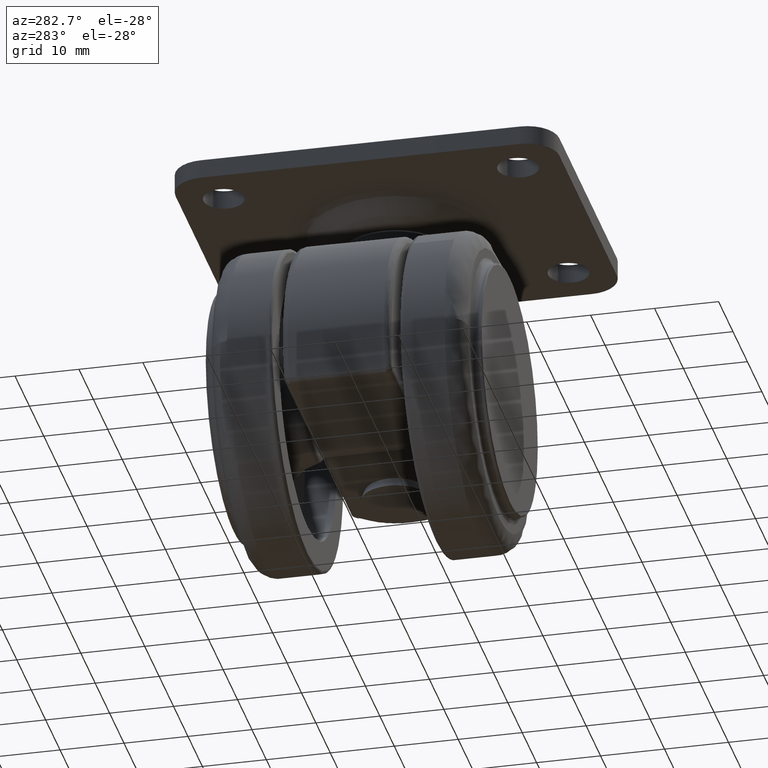
[diagram: clean part render]
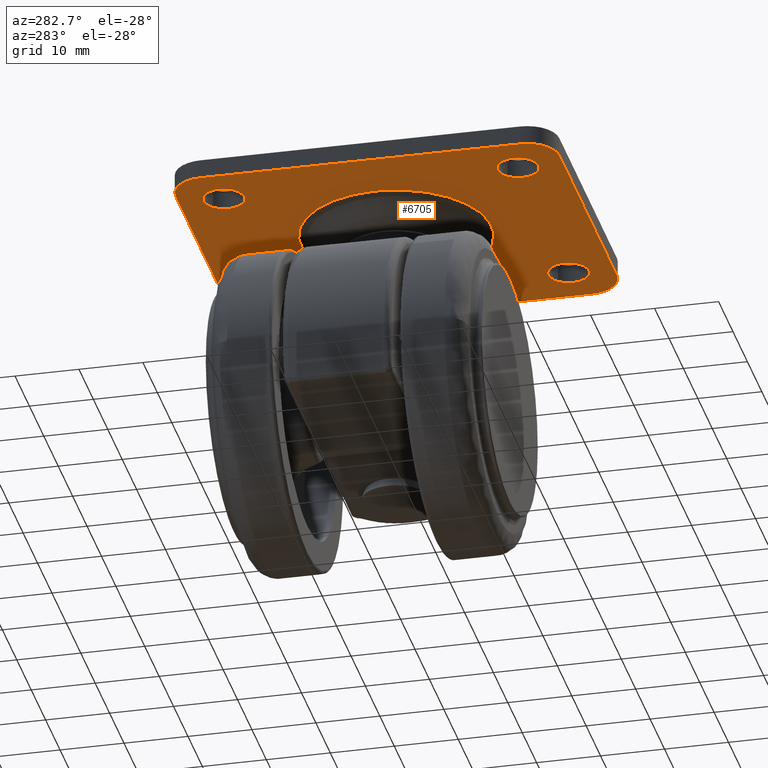
[diagram: same view with one face highlighted and labeled with its STEP entity id]
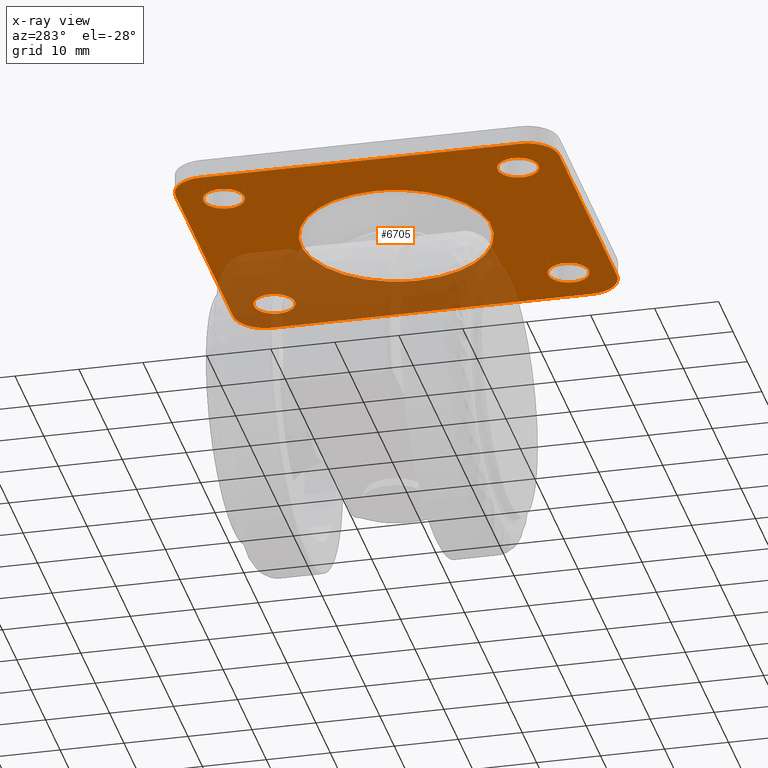
[diagram: x-ray of the same camera — body ghosted, the highlighted face saturated]
A machine part, auxiliary view. The second image highlights one B-rep face of the part: STEP entity #6705.
The next image is the same camera in x-ray: the body ghosted, the highlighted face saturated — about 32% of this face is hidden behind the body in this view.
In plain terms, the highlighted face is a freeform B-spline surface patch.
Its self-contained STEP definition (entity closure, byte-faithful):
#5645=CARTESIAN_POINT('',(1.821197815089798,25.202734401939399,38.0));
#5646=VERTEX_POINT('',#5645);
#5652=CARTESIAN_POINT('',(2.700000000000000,23.0,38.0));
#5653=VERTEX_POINT('',#5652);
#5654=CARTESIAN_POINT('',(2.700000000000000,23.0,38.0));
#5655=CARTESIAN_POINT('',(2.700327592342480,23.379663535215339,38.000000000000099));
#5656=CARTESIAN_POINT('',(2.590575398098085,23.986801447734120,38.000000000000071));
#5657=CARTESIAN_POINT('',(2.226995133786807,24.715620211499498,37.999999999999822));
#5658=CARTESIAN_POINT('',(1.960575628047443,25.055889256916519,38.000000000000149));
#5659=CARTESIAN_POINT('',(1.821197815089798,25.202734401939399,38.0));
#5660=B_SPLINE_CURVE_WITH_KNOTS('',3,(#5654,#5655,#5656,#5657,#5658,#5659),.UNSPECIFIED.,.F.,.U.,(4,1,1,4),(0.000000024276487,1.138840426402756,1.822134304243089,2.429512397566157),.UNSPECIFIED.);
#5661=EDGE_CURVE('',#5653,#5646,#5660,.T.);
#5663=CARTESIAN_POINT('',(-0.499998837322204,19.800000000000210,38.0));
#5664=VERTEX_POINT('',#5663);
#5665=CARTESIAN_POINT('',(-0.499998837322204,19.800000000000210,38.0));
#5666=CARTESIAN_POINT('',(-0.277468993926836,19.799973766591901,38.000000000000043));
#5667=CARTESIAN_POINT('',(0.167578739404953,19.846602796689162,38.000000000000028));
#5668=CARTESIAN_POINT('',(0.843799909476237,20.065353587800949,37.999999999999922));
#5669=CARTESIAN_POINT('',(1.398085055593777,20.397598040863649,38.000000000000078));
#5670=CARTESIAN_POINT('',(1.923289844793699,20.873586162689339,37.999999999999531));
#5671=CARTESIAN_POINT('',(2.310180261691126,21.408847019132669,38.000000000000263));
#5672=CARTESIAN_POINT('',(2.622248205985708,22.162314851148590,37.999999999999901));
#5673=CARTESIAN_POINT('',(2.700129237018877,22.685828479393589,38.000000000000043));
#5674=CARTESIAN_POINT('',(2.700000000000000,23.0,38.0));
#5675=B_SPLINE_CURVE_WITH_KNOTS('',3,(#5665,#5666,#5667,#5668,#5669,#5670,#5671,#5672,#5673,#5674),.UNSPECIFIED.,.F.,.U.,(4,1,1,1,1,1,1,4),(0.000000099089100,0.667590304751695,1.335186188772838,2.120593227736319,2.591809422980791,3.455765944233296,4.084102798533280,5.026579129899637),.UNSPECIFIED.);
#5676=EDGE_CURVE('',#5664,#5653,#5675,.T.);
#5678=CARTESIAN_POINT('',(-2.821197815089791,20.797265598060608,38.0));
#5679=VERTEX_POINT('',#5678);
#5680=CARTESIAN_POINT('',(-2.821197815089791,20.797265598060608,38.0));
#5681=CARTESIAN_POINT('',(-2.588550152113383,20.551815194952400,38.000000000000078));
#5682=CARTESIAN_POINT('',(-2.131469269058897,20.202566739679629,37.999999999999872));
#5683=CARTESIAN_POINT('',(-1.325053856213758,19.874126692175619,38.000000000000178));
#5684=CARTESIAN_POINT('',(-0.797587973652841,19.799897435573541,37.999999999999979));
#5685=CARTESIAN_POINT('',(-0.499998837322204,19.800000000000210,38.0));
#5686=B_SPLINE_CURVE_WITH_KNOTS('',3,(#5680,#5681,#5682,#5683,#5684,#5685),.UNSPECIFIED.,.F.,.U.,(4,1,1,4),(0.000000026464742,1.014488720852518,1.704321491316364,2.597068427438120),.UNSPECIFIED.);
#5687=EDGE_CURVE('',#5679,#5664,#5686,.T.);
#5727=CARTESIAN_POINT('',(-3.700000000000000,23.0,38.0));
#5728=VERTEX_POINT('',#5727);
#5729=CARTESIAN_POINT('',(-3.700000000000000,23.0,38.0));
#5730=CARTESIAN_POINT('',(-3.700014275915879,22.797542957936109,38.000000000000050));
#5731=CARTESIAN_POINT('',(-3.656657786487206,22.342012373279360,37.999999999999993));
#5732=CARTESIAN_POINT('',(-3.409144904511557,21.564933455713518,38.000000000000043));
#5733=CARTESIAN_POINT('',(-3.065270240035319,21.054130898848939,37.999999999999993));
#5734=CARTESIAN_POINT('',(-2.821197815089791,20.797265598060608,38.0));
#5735=B_SPLINE_CURVE_WITH_KNOTS('',3,(#5729,#5730,#5731,#5732,#5733,#5734),.UNSPECIFIED.,.F.,.U.,(4,1,1,4),(0.000000024275514,0.607378117597622,1.366591248218164,2.429512397566153),.UNSPECIFIED.);
#5736=EDGE_CURVE('',#5728,#5679,#5735,.T.);
#5738=CARTESIAN_POINT('',(-0.500001162677764,26.199999999999790,38.0));
#5739=VERTEX_POINT('',#5738);
#5740=CARTESIAN_POINT('',(-0.500001162677764,26.199999999999790,38.0));
#5741=CARTESIAN_POINT('',(-0.774892467162005,26.200077353486780,38.000000000000007));
#5742=CARTESIAN_POINT('',(-1.259186288259239,26.137201710227028,37.999999999999922));
#5743=CARTESIAN_POINT('',(-1.875630516762560,25.908032999128569,38.000000000000142));
#5744=CARTESIAN_POINT('',(-2.418269991173651,25.587322406203100,38.0));
#5745=CARTESIAN_POINT('',(-2.919077129752634,25.139039175232298,37.999999999999957));
#5746=CARTESIAN_POINT('',(-3.325258202476805,24.554662160171599,38.000000000000057));
#5747=CARTESIAN_POINT('',(-3.622239114397012,23.837682757170811,38.000000000000021));
#5748=CARTESIAN_POINT('',(-3.700134776717856,23.314174355377130,37.999999999999972));
#5749=CARTESIAN_POINT('',(-3.700000000000000,23.0,38.0));
#5750=B_SPLINE_CURVE_WITH_KNOTS('',3,(#5740,#5741,#5742,#5743,#5744,#5745,#5746,#5747,#5748,#5749),.UNSPECIFIED.,.F.,.U.,(4,1,1,1,1,1,1,4),(0.000000099076751,0.824662171667979,1.452998380015252,1.963526388306617,2.709637160765788,3.455765944231594,4.084102798532874,5.026579129899658),.UNSPECIFIED.);
#5751=EDGE_CURVE('',#5739,#5728,#5750,.T.);
#5753=CARTESIAN_POINT('',(1.821197815089798,25.202734401939399,38.0));
#5754=CARTESIAN_POINT('',(1.662935449219573,25.369557434904301,37.999999999999993));
#5755=CARTESIAN_POINT('',(1.320619788097408,25.660049711714439,38.000000000000092));
#5756=CARTESIAN_POINT('',(0.794074253250719,25.943985672185040,37.999999999999787));
#5757=CARTESIAN_POINT('',(0.189809757713054,26.146489722412461,38.000000000000220));
#5758=CARTESIAN_POINT('',(-0.229463880520607,26.200074394499840,37.999999999999993));
#5759=CARTESIAN_POINT('',(-0.500001162677764,26.199999999999790,38.0));
#5760=B_SPLINE_CURVE_WITH_KNOTS('',3,(#5753,#5754,#5755,#5756,#5757,#5758,#5759),.UNSPECIFIED.,.F.,.U.,(4,1,1,1,4),(0.000000026465615,0.689847183008232,1.339098781058016,1.785480325967836,2.597068427438073),.UNSPECIFIED.);
#5761=EDGE_CURVE('',#5646,#5739,#5760,.T.);
#5850=CARTESIAN_POINT('',(36.821197815089803,25.202734401939399,38.0));
#5851=VERTEX_POINT('',#5850);
#5857=CARTESIAN_POINT('',(37.700000000000003,23.0,38.0));
#5858=VERTEX_POINT('',#5857);
#5859=CARTESIAN_POINT('',(37.700000000000003,23.0,38.0));
#5860=CARTESIAN_POINT('',(37.700229638636841,23.354331029951339,38.000000000000121));
#5861=CARTESIAN_POINT('',(37.598060277213300,23.961566109942972,37.999999999999730));
#5862=CARTESIAN_POINT('',(37.242679615435840,24.695608208203218,38.000000000000362));
#5863=CARTESIAN_POINT('',(36.960574328315992,25.055889123600419,37.999999999999687));
#5864=CARTESIAN_POINT('',(36.821197815089803,25.202734401939399,38.0));
#5865=B_SPLINE_CURVE_WITH_KNOTS('',3,(#5859,#5860,#5861,#5862,#5863,#5864),.UNSPECIFIED.,.F.,.U.,(4,1,1,4),(0.000000024275492,1.062921173658126,1.822134304243355,2.429512397566155),.UNSPECIFIED.);
#5866=EDGE_CURVE('',#5858,#5851,#5865,.T.);
#5868=CARTESIAN_POINT('',(34.500001162677812,19.800000000000210,38.0));
#5869=VERTEX_POINT('',#5868);
#5870=CARTESIAN_POINT('',(34.500001162677812,19.800000000000210,38.0));
#5871=CARTESIAN_POINT('',(34.853459199517992,19.799792204218850,38.000000000000099));
#5872=CARTESIAN_POINT('',(35.429266176297347,19.896416708330829,37.999999999999702));
#5873=CARTESIAN_POINT('',(36.133238482314731,20.224193720887691,38.000000000000398));
#5874=CARTESIAN_POINT('',(36.674181364178189,20.620232197040909,37.999999999999602));
#5875=CARTESIAN_POINT('',(37.060954134825721,21.052261407970349,38.000000000000121));
#5876=CARTESIAN_POINT('',(37.370524754867397,21.554721985276469,38.000000000000107));
#5877=CARTESIAN_POINT('',(37.622258891431073,22.162305959944948,37.999999999999851));
#5878=CARTESIAN_POINT('',(37.700129097529171,22.685828959659961,37.999999999999950));
#5879=CARTESIAN_POINT('',(37.700000000000003,23.0,38.0));
#5880=B_SPLINE_CURVE_WITH_KNOTS('',3,(#5870,#5871,#5872,#5873,#5874,#5875,#5876,#5877,#5878,#5879),.UNSPECIFIED.,.F.,.U.,(4,1,1,1,1,1,1,4),(0.000000099086728,1.060293317972911,1.727887676833240,2.316943611558083,3.063053258171928,3.455765944232729,4.084102798533112,5.026579129899635),.UNSPECIFIED.);
#5881=EDGE_CURVE('',#5869,#5858,#5880,.T.);
#5883=CARTESIAN_POINT('',(32.178802184910211,20.797265598060608,38.0));
#5884=VERTEX_POINT('',#5883);
#5885=CARTESIAN_POINT('',(32.178802184910211,20.797265598060608,38.0));
#5886=CARTESIAN_POINT('',(32.439308762614701,20.522259326657959,37.999999999999893));
#5887=CARTESIAN_POINT('',(32.871277487502930,20.205275982379320,38.000000000000171));
#5888=CARTESIAN_POINT('',(33.675002963864813,19.877941538905780,37.999999999999872));
#5889=CARTESIAN_POINT('',(34.161808757729553,19.799801452755499,38.000000000000149));
#5890=CARTESIAN_POINT('',(34.500001162677812,19.800000000000210,38.0));
#5891=B_SPLINE_CURVE_WITH_KNOTS('',3,(#5885,#5886,#5887,#5888,#5889,#5890),.UNSPECIFIED.,.F.,.U.,(4,1,1,4),(0.000000026468123,1.136229976142350,1.582579733022815,2.597068427438110),.UNSPECIFIED.);
#5892=EDGE_CURVE('',#5884,#5869,#5891,.T.);
#5932=CARTESIAN_POINT('',(31.300000000000001,23.0,38.0));
#5933=VERTEX_POINT('',#5932);
#5934=CARTESIAN_POINT('',(31.300000000000001,23.0,38.0));
#5935=CARTESIAN_POINT('',(31.299693927782808,22.620338280500128,38.000000000000121));
#5936=CARTESIAN_POINT('',(31.402558691645780,22.051152207234569,37.999999999999737));
#5937=CARTESIAN_POINT('',(31.752531571894991,21.317260848178790,38.000000000000263));
#5938=CARTESIAN_POINT('',(32.013270007823913,20.971629097371700,37.999999999999808));
#5939=CARTESIAN_POINT('',(32.178802184910211,20.797265598060608,38.0));
#5940=B_SPLINE_CURVE_WITH_KNOTS('',3,(#5934,#5935,#5936,#5937,#5938,#5939),.UNSPECIFIED.,.F.,.U.,(4,1,1,4),(0.000000024276201,1.138840426402362,1.708248340673662,2.429512397566155),.UNSPECIFIED.);
#5941=EDGE_CURVE('',#5933,#5884,#5940,.T.);
#5943=CARTESIAN_POINT('',(34.499998837322252,26.199999999999790,38.0));
#5944=VERTEX_POINT('',#5943);
#5945=CARTESIAN_POINT('',(34.499998837322252,26.199999999999790,38.0));
#5946=CARTESIAN_POINT('',(34.146535589931851,26.200215840392271,38.000000000000043));
#5947=CARTESIAN_POINT('',(33.570751539238152,26.103556794413901,37.999999999999943));
#5948=CARTESIAN_POINT('',(32.783206229620383,25.736979433693129,38.000000000000092));
#5949=CARTESIAN_POINT('',(32.246920659037023,25.307797080145811,38.000000000000021));
#5950=CARTESIAN_POINT('',(31.825291249311292,24.787435374951752,38.000000000000092));
#5951=CARTESIAN_POINT('',(31.552562238357918,24.291943809345440,37.999999999999297));
#5952=CARTESIAN_POINT('',(31.350621868399330,23.680654546084838,38.000000000000732));
#5953=CARTESIAN_POINT('',(31.299947240345990,23.248708936318629,37.999999999999709));
#5954=CARTESIAN_POINT('',(31.300000000000001,23.0,38.0));
#5955=B_SPLINE_CURVE_WITH_KNOTS('',3,(#5945,#5946,#5947,#5948,#5949,#5950,#5951,#5952,#5953,#5954),.UNSPECIFIED.,.F.,.U.,(4,1,1,1,1,1,1,4),(0.000000099081436,1.060293317966420,1.727887676827639,2.591809422976955,3.102341623610741,3.730663262967035,4.280459172530868,5.026579129899662),.UNSPECIFIED.);
#5956=EDGE_CURVE('',#5944,#5933,#5955,.T.);
#5958=CARTESIAN_POINT('',(36.821197815089803,25.202734401939399,38.0));
#5959=CARTESIAN_POINT('',(36.644324401361629,25.389193877535689,37.999999999999993));
#5960=CARTESIAN_POINT('',(36.255841315727373,25.710445242192261,38.000000000000043));
#5961=CARTESIAN_POINT('',(35.473746149545498,26.094616930414631,37.999999999999957));
#5962=CARTESIAN_POINT('',(34.865247617722360,26.200255314535500,38.000000000000007));
#5963=CARTESIAN_POINT('',(34.499998837322252,26.199999999999790,38.0));
#5964=B_SPLINE_CURVE_WITH_KNOTS('',3,(#5958,#5959,#5960,#5961,#5962,#5963),.UNSPECIFIED.,.F.,.U.,(4,1,1,4),(0.000000026471420,0.771005969935823,1.501424918848094,2.597068427438095),.UNSPECIFIED.);
#5965=EDGE_CURVE('',#5851,#5944,#5964,.T.);
#6052=CARTESIAN_POINT('',(36.821197815089803,-20.797265598060601,38.000000000000007));
#6053=VERTEX_POINT('',#6052);
#6059=CARTESIAN_POINT('',(37.700000000000003,-23.0,38.0));
#6060=VERTEX_POINT('',#6059);
#6061=CARTESIAN_POINT('',(37.700000000000003,-23.0,38.0));
#6062=CARTESIAN_POINT('',(37.700045850380427,-22.759576448850680,38.000000000000043));
#6063=CARTESIAN_POINT('',(37.648418020908942,-22.304071615209860,37.999999999999922));
#6064=CARTESIAN_POINT('',(37.387611375244198,-21.533013539411339,38.000000000000078));
#6065=CARTESIAN_POINT('',(37.065285018785161,-21.054129359451220,37.999999999999957));
#6066=CARTESIAN_POINT('',(36.821197815089803,-20.797265598060601,38.000000000000007));
#6067=B_SPLINE_CURVE_WITH_KNOTS('',3,(#6061,#6062,#6063,#6064,#6065,#6066),.UNSPECIFIED.,.F.,.U.,(4,1,1,4),(0.000000024277275,0.721264081195667,1.366591248218386,2.429512397566152),.UNSPECIFIED.);
#6068=EDGE_CURVE('',#6060,#6053,#6067,.T.);
#6070=CARTESIAN_POINT('',(34.500001162677812,-26.199999999999790,38.0));
#6071=VERTEX_POINT('',#6070);
#6072=CARTESIAN_POINT('',(34.500001162677812,-26.199999999999790,38.0));
#6073=CARTESIAN_POINT('',(34.748709810699012,-26.200048696271960,38.000000000000007));
#6074=CARTESIAN_POINT('',(35.193745664064132,-26.147844725498899,38.000000000000050));
#6075=CARTESIAN_POINT('',(35.878881758215172,-25.916877199282659,37.999999999999922));
#6076=CARTESIAN_POINT('',(36.555695287064559,-25.505652639268469,38.000000000000313));
#6077=CARTESIAN_POINT('',(37.141086670566310,-24.875480320243849,37.999999999999091));
#6078=CARTESIAN_POINT('',(37.584423663887762,-24.020814200251220,38.000000000001187));
#6079=CARTESIAN_POINT('',(37.700322123793299,-23.379658959512660,37.999999999999247));
#6080=CARTESIAN_POINT('',(37.700000000000003,-23.0,38.0));
#6081=B_SPLINE_CURVE_WITH_KNOTS('',3,(#6072,#6073,#6074,#6075,#6076,#6077,#6078,#6079,#6080),.UNSPECIFIED.,.F.,.U.,(4,1,1,1,1,1,4),(0.000000099088280,0.746123602685260,1.335186188773161,2.159882007975973,3.102341623613431,3.887747003496379,5.026579129899635),.UNSPECIFIED.);
#6082=EDGE_CURVE('',#6071,#6060,#6081,.T.);
#6084=CARTESIAN_POINT('',(32.178802184910211,-25.202734401939399,38.0));
#6085=VERTEX_POINT('',#6084);
#6086=CARTESIAN_POINT('',(32.178802184910211,-25.202734401939399,38.0));
#6087=CARTESIAN_POINT('',(32.337062562906013,-25.369559130448661,37.999999999999943));
#6088=CARTESIAN_POINT('',(32.689753544923747,-25.668858318946189,38.000000000000178));
#6089=CARTESIAN_POINT('',(33.254479493717859,-25.968789916325999,37.999999999999901));
#6090=CARTESIAN_POINT('',(33.864275699464663,-26.156064075879101,38.000000000000099));
#6091=CARTESIAN_POINT('',(34.270050942059477,-26.200037394583891,37.999999999999972));
#6092=CARTESIAN_POINT('',(34.500001162677812,-26.199999999999790,38.0));
#6093=B_SPLINE_CURVE_WITH_KNOTS('',3,(#6086,#6087,#6088,#6089,#6090,#6091,#6092),.UNSPECIFIED.,.F.,.U.,(4,1,1,1,4),(0.000000026466759,0.689847183008128,1.379681707174564,1.907221270871129,2.597068427438134),.UNSPECIFIED.);
#6094=EDGE_CURVE('',#6085,#6071,#6093,.T.);
#6134=CARTESIAN_POINT('',(31.300000000000001,-23.0,38.0));
#6135=VERTEX_POINT('',#6134);
#6136=CARTESIAN_POINT('',(31.300000000000001,-23.0,38.0));
#6137=CARTESIAN_POINT('',(31.299957038726621,-23.265723848134680,38.000000000000007));
#6138=CARTESIAN_POINT('',(31.372825693117459,-23.847809296561991,37.999999999999950));
#6139=CARTESIAN_POINT('',(31.689690031211391,-24.602740525131381,38.000000000000092));
#6140=CARTESIAN_POINT('',(32.022012735938922,-25.037532707430440,37.999999999999957));
#6141=CARTESIAN_POINT('',(32.178802184910211,-25.202734401939399,38.0));
#6142=B_SPLINE_CURVE_WITH_KNOTS('',3,(#6136,#6137,#6138,#6139,#6140,#6141),.UNSPECIFIED.,.F.,.U.,(4,1,1,4),(0.000000024274844,0.797186879195160,1.746210922929381,2.429512397566155),.UNSPECIFIED.);
#6143=EDGE_CURVE('',#6135,#6085,#6142,.T.);
#6145=CARTESIAN_POINT('',(34.499998837322252,-19.800000000000210,38.000000000000007));
#6146=VERTEX_POINT('',#6145);
#6147=CARTESIAN_POINT('',(34.499998837322252,-19.800000000000210,38.000000000000007));
#6148=CARTESIAN_POINT('',(34.212012609660853,-19.799906361619961,38.000000000000028));
#6149=CARTESIAN_POINT('',(33.701547188901067,-19.869390104397919,38.000000000000078));
#6150=CARTESIAN_POINT('',(33.101303837950212,-20.105197700717650,38.0));
#6151=CARTESIAN_POINT('',(32.606355642372201,-20.401863321691540,38.000000000000007));
#6152=CARTESIAN_POINT('',(32.205621709323687,-20.743260585671329,38.000000000000007));
#6153=CARTESIAN_POINT('',(31.825288829460789,-21.212557861973920,38.000000000000057));
#6154=CARTESIAN_POINT('',(31.527163854366009,-21.754133859211169,37.999999999999673));
#6155=CARTESIAN_POINT('',(31.339857152718590,-22.371681817151821,37.999999999999929));
#6156=CARTESIAN_POINT('',(31.299987278437921,-22.803650605405540,38.000000000000092));
#6157=CARTESIAN_POINT('',(31.300000000000001,-23.0,38.0));
#6158=B_SPLINE_CURVE_WITH_KNOTS('',3,(#6147,#6148,#6149,#6150,#6151,#6152,#6153,#6154,#6155,#6156,#6157),.UNSPECIFIED.,.F.,.U.,(4,1,1,1,1,1,1,1,4),(0.000000099083236,0.863943306186279,1.531537103925098,1.924240724094413,2.591809422979239,3.102341623612109,3.730663262967590,4.437527119309249,5.026579129899655),.UNSPECIFIED.);
#6159=EDGE_CURVE('',#6146,#6135,#6158,.T.);
#6161=CARTESIAN_POINT('',(36.821197815089803,-20.797265598060601,38.000000000000007));
#6162=CARTESIAN_POINT('',(36.597829399470903,-20.561670607100890,38.000000000000007));
#6163=CARTESIAN_POINT('',(36.197560400736691,-20.251710958576449,38.000000000000178));
#6164=CARTESIAN_POINT('',(35.406100739901497,-19.893676553315188,37.999999999999922));
#6165=CARTESIAN_POINT('',(34.865256307859781,-19.799753972303190,38.000000000000050));
#6166=CARTESIAN_POINT('',(34.499998837322252,-19.800000000000210,38.000000000000007));
#6167=B_SPLINE_CURVE_WITH_KNOTS('',3,(#6161,#6162,#6163,#6164,#6165,#6166),.UNSPECIFIED.,.F.,.U.,(4,1,1,4),(0.000000026467133,0.973901103858894,1.501424918846321,2.597068427438072),.UNSPECIFIED.);
#6168=EDGE_CURVE('',#6053,#6146,#6167,.T.);
#6258=CARTESIAN_POINT('',(1.821197815089798,-20.797265598060601,38.0));
#6259=VERTEX_POINT('',#6258);
#6265=CARTESIAN_POINT('',(2.700000000000000,-23.0,38.0));
#6266=VERTEX_POINT('',#6265);
#6267=CARTESIAN_POINT('',(2.700000000000000,-23.0,38.0));
#6268=CARTESIAN_POINT('',(2.700153108896465,-22.683637168235450,37.999999999999943));
#6269=CARTESIAN_POINT('',(2.622393657181108,-22.164941091878941,38.000000000000263));
#6270=CARTESIAN_POINT('',(2.312014718417724,-21.412978939788101,37.999999999999510));
#6271=CARTESIAN_POINT('',(2.021608194732179,-21.008315720054600,38.000000000000547));
#6272=CARTESIAN_POINT('',(1.821197815089798,-20.797265598060601,38.0));
#6273=B_SPLINE_CURVE_WITH_KNOTS('',3,(#6267,#6268,#6269,#6270,#6271,#6272),.UNSPECIFIED.,.F.,.U.,(4,1,1,4),(0.000000024275236,0.949030309812508,1.556404526191221,2.429512397566145),.UNSPECIFIED.);
#6274=EDGE_CURVE('',#6266,#6259,#6273,.T.);
#6276=CARTESIAN_POINT('',(-0.499998837322206,-26.199999999999790,38.0));
#6277=VERTEX_POINT('',#6276);
#6278=CARTESIAN_POINT('',(-0.499998837322206,-26.199999999999790,38.0));
#6279=CARTESIAN_POINT('',(-0.290563168782782,-26.200028799224981,37.999999999999872));
#6280=CARTESIAN_POINT('',(0.115214031349823,-26.160012091948939,38.000000000000327));
#6281=CARTESIAN_POINT('',(0.732762708173354,-25.976864742511729,37.999999999999922));
#6282=CARTESIAN_POINT('',(1.278668023982586,-25.685053014655900,37.999999999999638));
#6283=CARTESIAN_POINT('',(1.786469295439179,-25.268297358352971,38.000000000000853));
#6284=CARTESIAN_POINT('',(2.170802069104728,-24.800009964317010,37.999999999998458));
#6285=CARTESIAN_POINT('',(2.480462911521614,-24.220648923982239,38.000000000001137));
#6286=CARTESIAN_POINT('',(2.660144776097721,-23.628323379254159,38.000000000000092));
#6287=CARTESIAN_POINT('',(2.700015421323734,-23.196348484306831,37.999999999999801));
#6288=CARTESIAN_POINT('',(2.700000000000000,-23.0,38.0));
#6289=B_SPLINE_CURVE_WITH_KNOTS('',3,(#6278,#6279,#6280,#6281,#6282,#6283,#6284,#6285,#6286,#6287,#6288),.UNSPECIFIED.,.F.,.U.,(4,1,1,1,1,1,1,1,4),(0.000000099087679,0.628306078523023,1.217374197261519,1.924240724096182,2.474049145340217,3.180872616181187,3.730663262967872,4.437527119309252,5.026579129899644),.UNSPECIFIED.);
#6290=EDGE_CURVE('',#6277,#6266,#6289,.T.);
#6292=CARTESIAN_POINT('',(-2.821197815089792,-25.202734401939399,38.0));
#6293=VERTEX_POINT('',#6292);
#6294=CARTESIAN_POINT('',(-2.821197815089792,-25.202734401939399,38.0));
#6295=CARTESIAN_POINT('',(-2.597829597041171,-25.438319781249081,38.000000000000099));
#6296=CARTESIAN_POINT('',(-2.089409851528671,-25.832180794059081,37.999999999999737));
#6297=CARTESIAN_POINT('',(-1.271019120743560,-26.141534838372319,38.000000000000483));
#6298=CARTESIAN_POINT('',(-0.729942299040385,-26.200018205608089,37.999999999999652));
#6299=CARTESIAN_POINT('',(-0.499998837322206,-26.199999999999790,38.0));
#6300=B_SPLINE_CURVE_WITH_KNOTS('',3,(#6294,#6295,#6296,#6297,#6298,#6299),.UNSPECIFIED.,.F.,.U.,(4,1,1,4),(0.000000026465868,0.973901103858824,1.907221270871693,2.597068427438101),.UNSPECIFIED.);
#6301=EDGE_CURVE('',#6293,#6277,#6300,.T.);
#6341=CARTESIAN_POINT('',(-3.700000000000000,-23.0,38.0));
#6342=VERTEX_POINT('',#6341);
#6343=CARTESIAN_POINT('',(-3.700000000000000,-23.0,38.0));
#6344=CARTESIAN_POINT('',(-3.700043019739610,-23.240422827560572,37.999999999999922));
#6345=CARTESIAN_POINT('',(-3.645559361773654,-23.721239402319782,38.000000000000099));
#6346=CARTESIAN_POINT('',(-3.375294368524716,-24.490112421863969,37.999999999999993));
#6347=CARTESIAN_POINT('',(-3.047796616671138,-24.964189432878111,37.999999999999929));
#6348=CARTESIAN_POINT('',(-2.821197815089792,-25.202734401939399,38.0));
#6349=B_SPLINE_CURVE_WITH_KNOTS('',3,(#6343,#6344,#6345,#6346,#6347,#6348),.UNSPECIFIED.,.F.,.U.,(4,1,1,4),(0.000000024276261,0.721264081195179,1.442513107945685,2.429512397566152),.UNSPECIFIED.);
#6350=EDGE_CURVE('',#6342,#6293,#6349,.T.);
#6352=CARTESIAN_POINT('',(-0.500001162677762,-19.800000000000210,38.0));
#6353=VERTEX_POINT('',#6352);
#6354=CARTESIAN_POINT('',(-0.500001162677762,-19.800000000000210,38.0));
#6355=CARTESIAN_POINT('',(-0.787987975671429,-19.799910247872130,38.000000000000071));
#6356=CARTESIAN_POINT('',(-1.363905441943789,-19.878259274629620,37.999999999999993));
#6357=CARTESIAN_POINT('',(-2.116683115519681,-20.200889743448180,37.999999999999837));
#6358=CARTESIAN_POINT('',(-2.661644145103677,-20.615660273830699,38.000000000000107));
#6359=CARTESIAN_POINT('',(-3.111231772254184,-21.111637384798058,37.999999999999702));
#6360=CARTESIAN_POINT('',(-3.420153123831248,-21.634285127158190,38.000000000001080));
#6361=CARTESIAN_POINT('',(-3.646667394786024,-22.306266287530200,37.999999999999353));
#6362=CARTESIAN_POINT('',(-3.700072054315030,-22.738193596298022,38.000000000000199));
#6363=CARTESIAN_POINT('',(-3.700000000000000,-23.0,38.0));
#6364=B_SPLINE_CURVE_WITH_KNOTS('',3,(#6354,#6355,#6356,#6357,#6358,#6359,#6360,#6361,#6362,#6363),.UNSPECIFIED.,.F.,.U.,(4,1,1,1,1,1,1,4),(0.000000099084754,0.863943306186585,1.727887676830765,2.434770031763543,2.905988544891661,3.730663262967037,4.241178681412082,5.026579129899658),.UNSPECIFIED.);
#6365=EDGE_CURVE('',#6353,#6342,#6364,.T.);
#6367=CARTESIAN_POINT('',(1.821197815089798,-20.797265598060601,38.0));
#6368=CARTESIAN_POINT('',(1.560664954852164,-20.522318898775740,37.999999999999957));
#6369=CARTESIAN_POINT('',(1.040139142096574,-20.140135651284918,37.999999999999979));
#6370=CARTESIAN_POINT('',(0.216880885649043,-19.852689551628501,38.000000000000078));
#6371=CARTESIAN_POINT('',(-0.270054148992962,-19.799969114055720,37.999999999999922));
#6372=CARTESIAN_POINT('',(-0.500001162677762,-19.800000000000210,38.0));
#6373=B_SPLINE_CURVE_WITH_KNOTS('',3,(#6367,#6368,#6369,#6370,#6371,#6372),.UNSPECIFIED.,.F.,.U.,(4,1,1,4),(0.000000026465154,1.136229976141119,1.907221270871621,2.597068427438072),.UNSPECIFIED.);
#6374=EDGE_CURVE('',#6259,#6353,#6373,.T.);
#6434=CARTESIAN_POINT('',(25.913127380928319,-11.949170592122471,38.0));
#6435=VERTEX_POINT('',#6434);
#6444=CARTESIAN_POINT('',(2.092736079655421,0.0,38.0));
#6445=VERTEX_POINT('',#6444);
#6446=CARTESIAN_POINT('',(25.913127380928319,-11.949170592122471,38.0));
#6447=CARTESIAN_POINT('',(25.362568145965628,-12.359861604016251,37.999999999999993));
#6448=CARTESIAN_POINT('',(23.987441048493480,-13.244767669621330,38.000000000000163));
#6449=CARTESIAN_POINT('',(21.889169348483929,-14.150859270232001,37.999999999999822));
#6450=CARTESIAN_POINT('',(19.762101295801799,-14.688868445710369,38.000000000000377));
#6451=CARTESIAN_POINT('',(17.713172640287951,-14.941200976824179,37.999999999999488));
#6452=CARTESIAN_POINT('',(15.344518904299770,-14.893874628611099,38.000000000000327));
#6453=CARTESIAN_POINT('',(13.018647951620521,-14.429253043103049,38.000000000000007));
#6454=CARTESIAN_POINT('',(10.798755838053211,-13.612239217866410,37.999999999999510));
#6455=CARTESIAN_POINT('',(8.714214210541908,-12.486501525058010,38.000000000000909));
#6456=CARTESIAN_POINT('',(6.656070981122804,-10.848241376063690,37.999999999998877));
#6457=CARTESIAN_POINT('',(4.985362548532695,-8.931939450800408,38.000000000002018));
#6458=CARTESIAN_POINT('',(3.710548735496295,-6.886039021535462,37.999999999998607));
#6459=CARTESIAN_POINT('',(2.868401821745202,-4.903772498376802,38.000000000000647));
#6460=CARTESIAN_POINT('',(2.251179342841825,-2.575719454085299,37.999999999999417));
#6461=CARTESIAN_POINT('',(2.092596060110083,-0.987390649476564,38.000000000000568));
#6462=CARTESIAN_POINT('',(2.092736079655421,0.0,38.0));
#6463=B_SPLINE_CURVE_WITH_KNOTS('',3,(#6446,#6447,#6448,#6449,#6450,#6451,#6452,#6453,#6454,#6455,#6456,#6457,#6458,#6459,#6460,#6461,#6462),.UNSPECIFIED.,.F.,.U.,(4,1,1,1,1,1,1,1,1,1,1,1,1,1,4),(0.000000026068456,2.060605300007499,4.894011888181755,6.825859799623714,8.628927302886609,11.075950588113260,13.909340003993909,15.712405177820790,18.159363107466529,20.992754446019571,23.568549458117470,25.757987172631410,28.205005662043281,30.008080725177731,32.970218307140492),.UNSPECIFIED.);
#6464=EDGE_CURVE('',#6435,#6445,#6463,.T.);
#6466=CARTESIAN_POINT('',(8.086872619071682,11.949170592122471,38.0));
#6467=VERTEX_POINT('',#6466);
#6468=CARTESIAN_POINT('',(2.092736079655421,0.0,38.0));
#6469=CARTESIAN_POINT('',(2.092527413123343,1.119122573644419,38.000000000000028));
#6470=CARTESIAN_POINT('',(2.305163789045607,2.996219629497745,37.999999999999957));
#6471=CARTESIAN_POINT('',(3.100764307226066,5.554564969811657,38.000000000000121));
#6472=CARTESIAN_POINT('',(4.012955977798852,7.406364217685383,37.999999999999943));
#6473=CARTESIAN_POINT('',(5.136561542060753,9.090110572568774,38.000000000000213));
#6474=CARTESIAN_POINT('',(6.413520951144826,10.569862340206390,37.999999999999972));
#6475=CARTESIAN_POINT('',(7.508119174154192,11.517507902740290,37.999999999999993));
#6476=CARTESIAN_POINT('',(8.086872619071682,11.949170592122471,38.0));
#6477=B_SPLINE_CURVE_WITH_KNOTS('',3,(#6468,#6469,#6470,#6471,#6472,#6473,#6474,#6475,#6476),.UNSPECIFIED.,.F.,.U.,(4,1,1,1,1,1,4),(0.000000017052347,3.357315500532129,5.631628647417795,8.014223959880304,9.530444546317138,11.696456326577010,13.862465526009210),.UNSPECIFIED.);
#6478=EDGE_CURVE('',#6445,#6467,#6477,.T.);
#6526=CARTESIAN_POINT('',(31.907263920344580,0.0,38.0));
#6527=VERTEX_POINT('',#6526);
#6528=CARTESIAN_POINT('',(8.086872619071682,11.949170592122471,38.0));
#6529=CARTESIAN_POINT('',(8.843856715239381,12.513948427051140,38.000000000000213));
#6530=CARTESIAN_POINT('',(10.060215966846000,13.252588304025901,37.999999999999723));
#6531=CARTESIAN_POINT('',(12.155326232789720,14.146560532673290,38.000000000000242));
#6532=CARTESIAN_POINT('',(14.065974529998320,14.674121414551211,37.999999999999787));
#6533=CARTESIAN_POINT('',(16.501044544514279,14.963298876744901,38.000000000000242));
#6534=CARTESIAN_POINT('',(18.698446772294819,14.871817032038690,37.999999999999787));
#6535=CARTESIAN_POINT('',(20.975939409029490,14.416848471204840,38.000000000000433));
#6536=CARTESIAN_POINT('',(22.683677976410610,13.821659370594171,37.999999999998863));
#6537=CARTESIAN_POINT('',(24.419458060991559,12.969597619944411,38.000000000001613));
#6538=CARTESIAN_POINT('',(26.047183993703008,11.919547617774819,37.999999999998742));
#6539=CARTESIAN_POINT('',(27.756715685388610,10.407632331374391,38.000000000000512));
#6540=CARTESIAN_POINT('',(29.101619175217220,8.781883227786199,37.999999999999943));
#6541=CARTESIAN_POINT('',(30.056628143683390,7.249149776175272,38.000000000000071));
#6542=CARTESIAN_POINT('',(30.847601874430978,5.626584713041225,37.999999999999822));
#6543=CARTESIAN_POINT('',(31.652947321180481,3.262518329312093,38.000000000000632));
#6544=CARTESIAN_POINT('',(31.907626784000019,1.245003649760800,37.999999999999382));
#6545=CARTESIAN_POINT('',(31.907263920344580,0.0,38.0));
#6546=B_SPLINE_CURVE_WITH_KNOTS('',3,(#6528,#6529,#6530,#6531,#6532,#6533,#6534,#6535,#6536,#6537,#6538,#6539,#6540,#6541,#6542,#6543,#6544,#6545),.UNSPECIFIED.,.F.,.U.,(4,1,1,1,1,1,1,1,1,1,1,1,1,1,1,4),(0.000000026122194,2.833351777807511,4.250043756413852,6.825859799664688,8.757718225373633,11.591097007409971,13.394178278261711,15.712405177847300,17.000238948721620,19.189666512478510,21.507896852226221,23.826129440776501,25.500404761539130,26.917100128397859,29.235313252101871,32.970218307140463),.UNSPECIFIED.);
#6547=EDGE_CURVE('',#6467,#6527,#6546,.T.);
#6549=CARTESIAN_POINT('',(31.907263920344580,0.0,38.0));
#6550=CARTESIAN_POINT('',(31.907296593807938,-0.722002803035277,37.999999999999972));
#6551=CARTESIAN_POINT('',(31.802163341739440,-2.165999553916795,38.000000000000099));
#6552=CARTESIAN_POINT('',(31.379542726768481,-4.074318548027469,37.999999999999957));
#6553=CARTESIAN_POINT('',(30.774314695394541,-5.777307400594561,38.000000000000057));
#6554=CARTESIAN_POINT('',(29.955735995763462,-7.470160426440760,37.999999999999822));
#6555=CARTESIAN_POINT('',(28.789813548561050,-9.217364228405396,38.000000000000547));
#6556=CARTESIAN_POINT('',(27.372624547126531,-10.766173956504510,37.999999999999638));
#6557=CARTESIAN_POINT('',(26.376119343503959,-11.603828904716620,38.000000000000298));
#6558=CARTESIAN_POINT('',(25.913127380928319,-11.949170592122471,38.0));
#6559=B_SPLINE_CURVE_WITH_KNOTS('',3,(#6549,#6550,#6551,#6552,#6553,#6554,#6555,#6556,#6557,#6558),.UNSPECIFIED.,.F.,.U.,(4,1,1,1,1,1,1,4),(0.000000017056955,2.166009216488751,4.332020996748247,5.848241583184715,7.581019434660985,9.963646966542770,12.129658932220220,13.862465526009190),.UNSPECIFIED.);
#6560=EDGE_CURVE('',#6527,#6435,#6559,.T.);
#6566=CARTESIAN_POINT('',(-10.497499903090301,32.996999883708362,38.0));
#6567=CARTESIAN_POINT('',(44.497501244194822,32.996999883708362,38.0));
#6568=CARTESIAN_POINT('',(-10.497499903090301,-32.997001493033771,38.0));
#6569=CARTESIAN_POINT('',(44.497501244194808,-32.997001493033771,38.0));
#6570=B_SPLINE_SURFACE_WITH_KNOTS('',1,1,((#6566,#6568),(#6567,#6569)),.UNSPECIFIED.,.F.,.F.,.U.,(2,2),(2,2),(0.0,54.995001147285123),(0.0,65.994001376742119),.UNSPECIFIED.);
#6571=CARTESIAN_POINT('',(42.0,25.0,38.0));
#6572=VERTEX_POINT('',#6571);
#6573=CARTESIAN_POINT('',(37.0,30.0,38.0));
#6574=VERTEX_POINT('',#6573);
#6575=CARTESIAN_POINT('',(42.0,25.0,38.0));
#6576=CARTESIAN_POINT('',(42.000058764924340,25.347702531125471,37.999999999999993));
#6577=CARTESIAN_POINT('',(41.940001693601097,25.920358739857541,38.000000000000007));
#6578=CARTESIAN_POINT('',(41.688546289573878,26.807925146471721,38.000000000000043));
#6579=CARTESIAN_POINT('',(41.323382970113933,27.567899608219111,37.999999999999993));
#6580=CARTESIAN_POINT('',(40.790016403461770,28.296316249830749,38.000000000000128));
#6581=CARTESIAN_POINT('',(40.231676458743038,28.841097565778881,37.999999999999623));
#6582=CARTESIAN_POINT('',(39.530816750260882,29.341197221111461,38.000000000000533));
#6583=CARTESIAN_POINT('',(38.845002638411103,29.670732007915049,37.999999999999758));
#6584=CARTESIAN_POINT('',(37.961255809357567,29.932873373056658,38.000000000000298));
#6585=CARTESIAN_POINT('',(37.388617420584488,30.000095617159150,37.999999999997797));
#6586=CARTESIAN_POINT('',(37.0,30.0,38.0));
#6587=B_SPLINE_CURVE_WITH_KNOTS('',3,(#6575,#6576,#6577,#6578,#6579,#6580,#6581,#6582,#6583,#6584,#6585,#6586),.UNSPECIFIED.,.F.,.U.,(4,1,1,1,1,1,1,1,1,4),(0.000000080995845,1.043097298251519,1.718064971145995,2.761187279573643,3.558885248957182,4.417889728202784,5.092845097621019,6.135966054540257,6.688201312010358,7.854030914379447),.UNSPECIFIED.);
#6588=EDGE_CURVE('',#6572,#6574,#6587,.T.);
#6589=ORIENTED_EDGE('',*,*,#6588,.F.);
#6590=CARTESIAN_POINT('',(42.0,-24.999999999997002,38.0));
#6591=VERTEX_POINT('',#6590);
#6592=CARTESIAN_POINT('',(42.0,-24.999999999997002,38.0));
#6593=CARTESIAN_POINT('',(42.0,25.0,38.0));
#6594=QUASI_UNIFORM_CURVE('',1,(#6592,#6593),.UNSPECIFIED.,.F.,.U.);
#6595=EDGE_CURVE('',#6591,#6572,#6594,.T.);
#6596=ORIENTED_EDGE('',*,*,#6595,.F.);
#6597=CARTESIAN_POINT('',(37.0,-30.0,38.0));
#6598=VERTEX_POINT('',#6597);
#6599=CARTESIAN_POINT('',(37.0,-30.0,38.0));
#6600=CARTESIAN_POINT('',(37.347702708101487,-30.000054905078521,38.000000000000007));
#6601=CARTESIAN_POINT('',(38.002172283470543,-29.931445507055869,37.999999999999993));
#6602=CARTESIAN_POINT('',(38.943881641135192,-29.639497181445410,38.000000000000107));
#6603=CARTESIAN_POINT('',(39.687005571023640,-29.242261892202070,37.999999999999808));
#6604=CARTESIAN_POINT('',(40.404572689382881,-28.696317387432529,38.000000000000171));
#6605=CARTESIAN_POINT('',(41.020832471725960,-28.032976189139330,37.999999999999822));
#6606=CARTESIAN_POINT('',(41.496221083083732,-27.239687763983209,38.000000000000220));
#6607=CARTESIAN_POINT('',(41.886047405971873,-26.247506783260281,37.999999999999780));
#6608=CARTESIAN_POINT('',(42.000247271548410,-25.511362577506699,38.000000000000242));
#6609=CARTESIAN_POINT('',(42.0,-24.999999999997002,38.0));
#6610=B_SPLINE_CURVE_WITH_KNOTS('',3,(#6599,#6600,#6601,#6602,#6603,#6604,#6605,#6606,#6607,#6608,#6609),.UNSPECIFIED.,.F.,.U.,(4,1,1,1,1,1,1,1,4),(0.000000080994414,1.043097298249511,1.963507925429292,2.945268911680555,3.558885248955430,4.663324862254169,5.645080355089036,6.320048048157384,7.854030914381163),.UNSPECIFIED.);
#6611=EDGE_CURVE('',#6598,#6591,#6610,.T.);
#6612=ORIENTED_EDGE('',*,*,#6611,.F.);
#6613=CARTESIAN_POINT('',(-2.999999999995455,-30.0,38.0));
#6614=VERTEX_POINT('',#6613);
#6615=CARTESIAN_POINT('',(-2.999999999995455,-30.0,38.0));
#6616=CARTESIAN_POINT('',(37.0,-30.0,38.0));
#6617=QUASI_UNIFORM_CURVE('',1,(#6615,#6616),.UNSPECIFIED.,.F.,.U.);
#6618=EDGE_CURVE('',#6614,#6598,#6617,.T.);
#6619=ORIENTED_EDGE('',*,*,#6618,.F.);
#6620=CARTESIAN_POINT('',(-8.0,-25.0,38.0));
#6621=VERTEX_POINT('',#6620);
#6622=CARTESIAN_POINT('',(-8.0,-25.0,38.0));
#6623=CARTESIAN_POINT('',(-8.000095315973255,-25.388617972167879,38.000000000000071));
#6624=CARTESIAN_POINT('',(-7.923280493876886,-26.043069689593551,37.999999999999908));
#6625=CARTESIAN_POINT('',(-7.620099231889719,-26.980124335763939,38.000000000000007));
#6626=CARTESIAN_POINT('',(-7.155124516783515,-27.850159082145190,38.000000000000057));
#6627=CARTESIAN_POINT('',(-6.540818588429699,-28.571185488375530,37.999999999999929));
#6628=CARTESIAN_POINT('',(-5.744499880651424,-29.216572527653899,38.000000000000121));
#6629=CARTESIAN_POINT('',(-4.908521761509894,-29.663465307547082,37.999999999999929));
#6630=CARTESIAN_POINT('',(-3.920370843839673,-29.943340929258220,38.000000000000043));
#6631=CARTESIAN_POINT('',(-3.306795057950926,-30.000030706496020,37.999999999999922));
#6632=CARTESIAN_POINT('',(-2.999999999995455,-30.0,38.0));
#6633=B_SPLINE_CURVE_WITH_KNOTS('',3,(#6622,#6623,#6624,#6625,#6626,#6627,#6628,#6629,#6630,#6631,#6632),.UNSPECIFIED.,.F.,.U.,(4,1,1,1,1,1,1,1,4),(0.000000081005499,1.165832094868721,1.963507925439553,2.945268911689925,4.111071584435421,4.786031407316244,6.013242805247186,6.933645120554432,7.854030914381897),.UNSPECIFIED.);
#6634=EDGE_CURVE('',#6621,#6614,#6633,.T.);
#6635=ORIENTED_EDGE('',*,*,#6634,.F.);
#6636=CARTESIAN_POINT('',(-8.0,25.0,38.0));
#6637=VERTEX_POINT('',#6636);
#6638=CARTESIAN_POINT('',(-8.0,25.0,38.0));
#6639=CARTESIAN_POINT('',(-8.0,-25.0,38.0));
#6640=QUASI_UNIFORM_CURVE('',1,(#6638,#6639),.UNSPECIFIED.,.F.,.U.);
#6641=EDGE_CURVE('',#6637,#6621,#6640,.T.);
#6642=ORIENTED_EDGE('',*,*,#6641,.F.);
#6643=CARTESIAN_POINT('',(-3.0,30.0,38.0));
#6644=VERTEX_POINT('',#6643);
#6645=CARTESIAN_POINT('',(-3.0,30.0,38.0));
#6646=CARTESIAN_POINT('',(-3.347701589841070,30.000053913181681,38.000000000000057));
#6647=CARTESIAN_POINT('',(-4.002178323495555,29.931453026119911,37.999999999999943));
#6648=CARTESIAN_POINT('',(-4.806533749136713,29.682054183525452,37.999999999999979));
#6649=CARTESIAN_POINT('',(-5.489690849847434,29.353781387910502,38.0));
#6650=CARTESIAN_POINT('',(-6.089236364685175,28.958490698457091,38.000000000000107));
#6651=CARTESIAN_POINT('',(-6.724211637343822,28.375866553262750,37.999999999999773));
#6652=CARTESIAN_POINT('',(-7.296675582486473,27.623522299445501,38.000000000000050));
#6653=CARTESIAN_POINT('',(-7.733100089781659,26.715245951246359,38.000000000000249));
#6654=CARTESIAN_POINT('',(-7.957779220403308,25.818123774580940,37.999999999999432));
#6655=CARTESIAN_POINT('',(-8.000004082930854,25.245433429268878,38.000000000000611));
#6656=CARTESIAN_POINT('',(-8.0,25.0,38.0));
#6657=B_SPLINE_CURVE_WITH_KNOTS('',3,(#6645,#6646,#6647,#6648,#6649,#6650,#6651,#6652,#6653,#6654,#6655,#6656),.UNSPECIFIED.,.F.,.U.,(4,1,1,1,1,1,1,1,1,4),(0.000000080992764,1.043097298249302,1.963507925430020,2.515744678354175,3.313442817672890,4.111071584429157,5.092845097621575,6.135966054541064,7.117721547372969,7.854030914379406),.UNSPECIFIED.);
#6658=EDGE_CURVE('',#6644,#6637,#6657,.T.);
#6659=ORIENTED_EDGE('',*,*,#6658,.F.);
#6660=CARTESIAN_POINT('',(37.0,30.0,38.0));
#6661=CARTESIAN_POINT('',(-3.0,30.0,38.0));
#6662=QUASI_UNIFORM_CURVE('',1,(#6660,#6661),.UNSPECIFIED.,.F.,.U.);
#6663=EDGE_CURVE('',#6574,#6644,#6662,.T.);
#6664=ORIENTED_EDGE('',*,*,#6663,.F.);
#6665=EDGE_LOOP('',(#6589,#6596,#6612,#6619,#6635,#6642,#6659,#6664));
#6666=FACE_OUTER_BOUND('',#6665,.T.);
#6667=ORIENTED_EDGE('',*,*,#6478,.F.);
#6668=ORIENTED_EDGE('',*,*,#6464,.F.);
#6669=ORIENTED_EDGE('',*,*,#6560,.F.);
#6670=ORIENTED_EDGE('',*,*,#6547,.F.);
#6671=EDGE_LOOP('',(#6667,#6668,#6669,#6670));
#6672=FACE_BOUND('',#6671,.T.);
#6673=ORIENTED_EDGE('',*,*,#6290,.T.);
#6674=ORIENTED_EDGE('',*,*,#6274,.T.);
#6675=ORIENTED_EDGE('',*,*,#6374,.T.);
#6676=ORIENTED_EDGE('',*,*,#6365,.T.);
#6677=ORIENTED_EDGE('',*,*,#6350,.T.);
#6678=ORIENTED_EDGE('',*,*,#6301,.T.);
#6679=EDGE_LOOP('',(#6673,#6674,#6675,#6676,#6677,#6678));
#6680=FACE_BOUND('',#6679,.T.);
#6681=ORIENTED_EDGE('',*,*,#6082,.T.);
#6682=ORIENTED_EDGE('',*,*,#6068,.T.);
#6683=ORIENTED_EDGE('',*,*,#6168,.T.);
#6684=ORIENTED_EDGE('',*,*,#6159,.T.);
#6685=ORIENTED_EDGE('',*,*,#6143,.T.);
#6686=ORIENTED_EDGE('',*,*,#6094,.T.);
#6687=EDGE_LOOP('',(#6681,#6682,#6683,#6684,#6685,#6686));
#6688=FACE_BOUND('',#6687,.T.);
#6689=ORIENTED_EDGE('',*,*,#5881,.T.);
#6690=ORIENTED_EDGE('',*,*,#5866,.T.);
#6691=ORIENTED_EDGE('',*,*,#5965,.T.);
#6692=ORIENTED_EDGE('',*,*,#5956,.T.);
#6693=ORIENTED_EDGE('',*,*,#5941,.T.);
#6694=ORIENTED_EDGE('',*,*,#5892,.T.);
#6695=EDGE_LOOP('',(#6689,#6690,#6691,#6692,#6693,#6694));
#6696=FACE_BOUND('',#6695,.T.);
#6697=ORIENTED_EDGE('',*,*,#5676,.T.);
#6698=ORIENTED_EDGE('',*,*,#5661,.T.);
#6699=ORIENTED_EDGE('',*,*,#5761,.T.);
#6700=ORIENTED_EDGE('',*,*,#5751,.T.);
#6701=ORIENTED_EDGE('',*,*,#5736,.T.);
#6702=ORIENTED_EDGE('',*,*,#5687,.T.);
#6703=EDGE_LOOP('',(#6697,#6698,#6699,#6700,#6701,#6702));
#6704=FACE_BOUND('',#6703,.T.);
#6705=ADVANCED_FACE('',(#6666,#6672,#6680,#6688,#6696,#6704),#6570,.T.);